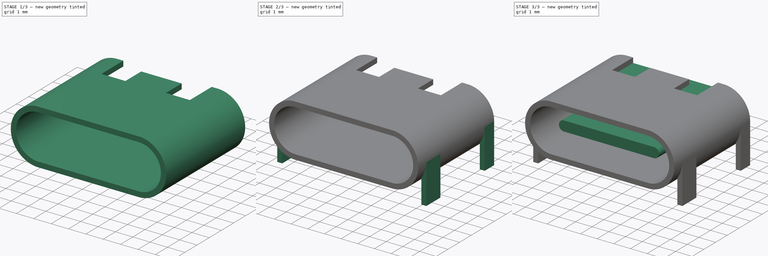
[diagram: build sequence overview — one tinted view per stage of 3, left to right]
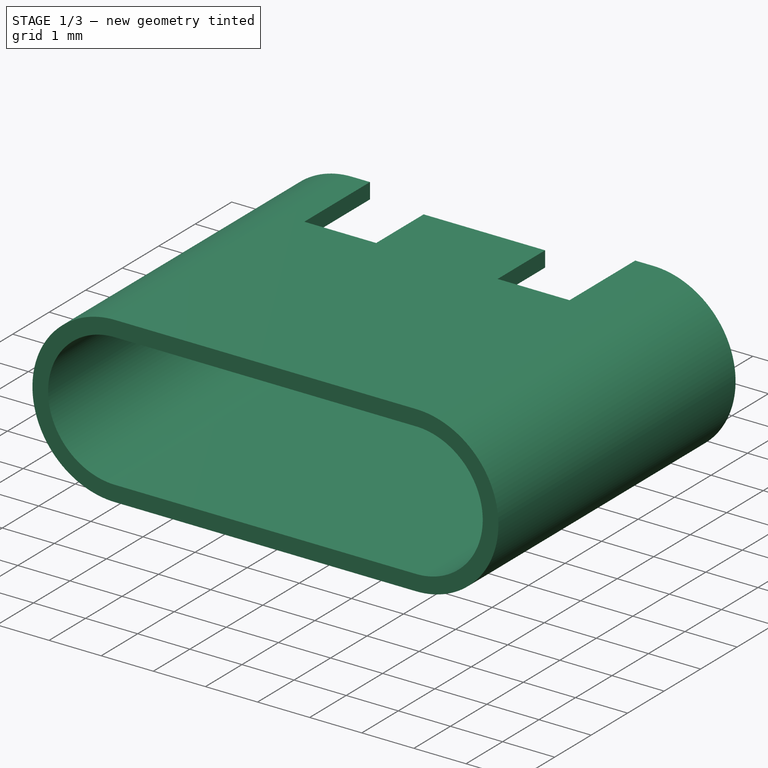
[diagram: stage 1 of 3 — iso view after this stage's code; geometry added in this stage tinted green]
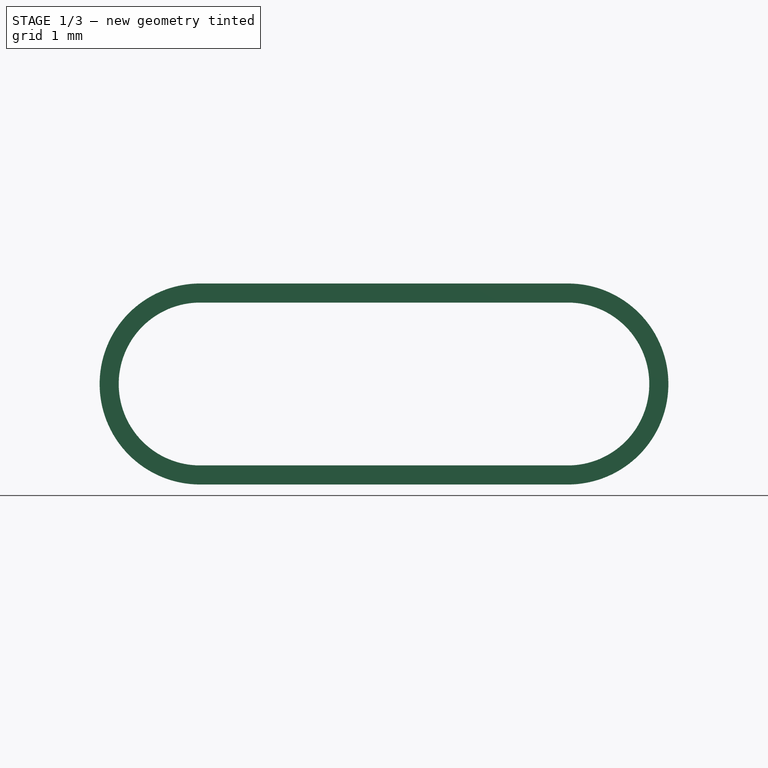
[diagram: stage 1 of 3 — front view after this stage's code; geometry added in this stage tinted green]
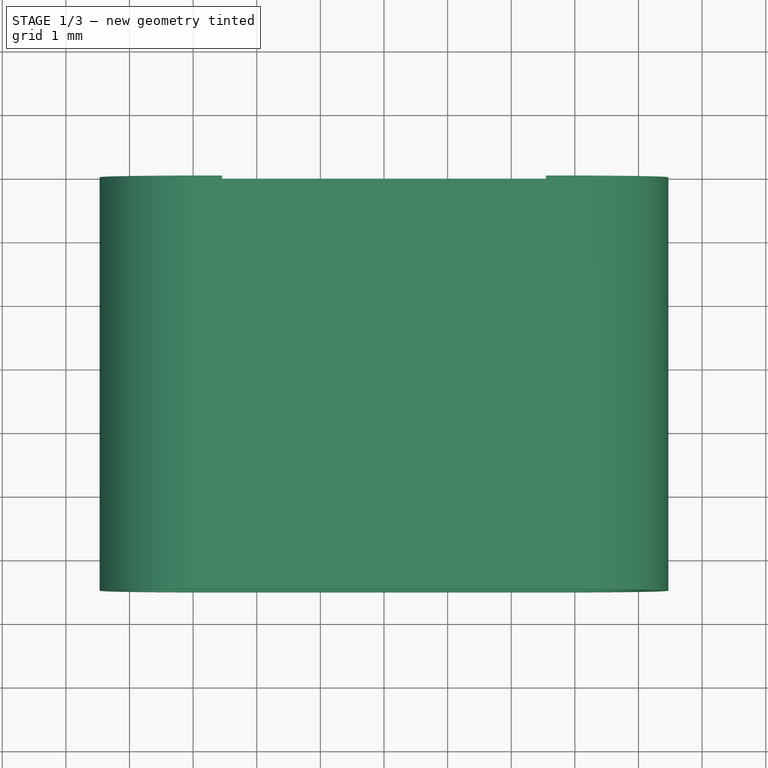
[diagram: stage 1 of 3 — top view after this stage's code; geometry added in this stage tinted green]
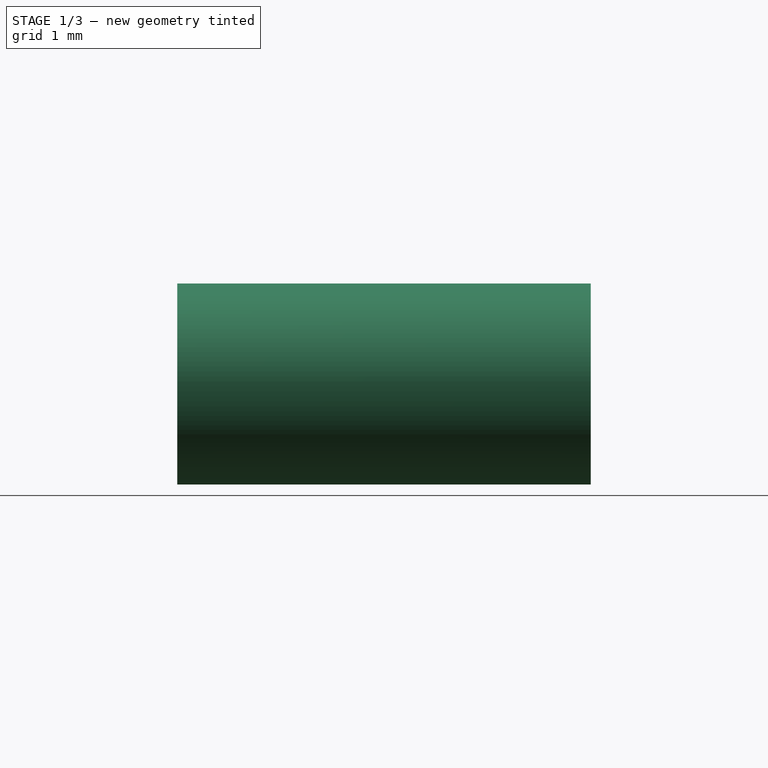
[diagram: stage 1 of 3 — right view after this stage's code; geometry added in this stage tinted green]
FCSTD DOCUMENT  (FreeCAD 0.20R27537 (Git))
Label: HC-TYPE-C-16P-01M
License: All rights reserved
LicenseURL: http://en.wikipedia.org/wiki/All_rights_reserved
objects: Sketcher::SketchObject×8, PartDesign::Pad×5, PartDesign::Plane×3, PartDesign::Pocket×1, PartDesign::Body×1
note: 24 computed .brp shape members not serialized (recipe doc carries the construction recipe); baked Part::Feature solids carry a one-line shape summary decoded from their .brp

FEATURE [Sketcher::SketchObject] Sketch
  FullyConstrained = true
  MapMode = 5
  Placement = pos=(0,0,0) rot=(1,0,0;1.5708rad)
  Support = -> [XZ_Plane]
  sketch-geometry (10):
    g0: ArcOfCircle CenterX=-2.89 CenterY=1.58 CenterZ=0 NormalX=0 NormalY=0 NormalZ=1 AngleXU=0 Radius=1.58 StartAngle=1.5708 EndAngle=4.71239
    g1: ArcOfCircle CenterX=2.89 CenterY=1.58 CenterZ=0 NormalX=0 NormalY=0 NormalZ=1 AngleXU=0 Radius=1.58 StartAngle=4.71239 EndAngle=7.85398
    g2: LineSegment StartX=-2.89 StartY=0 StartZ=0 EndX=2.89 EndY=0 EndZ=0
    g3: LineSegment StartX=2.89 StartY=3.16 StartZ=0 EndX=-2.89 EndY=3.16 EndZ=0
    g4: GeomPoint X=-4.47 Y=1.58 Z=0
    g5: GeomPoint X=4.47 Y=1.58 Z=0
    g6: ArcOfCircle CenterX=-2.89 CenterY=1.58 CenterZ=0 NormalX=0 NormalY=0 NormalZ=1 AngleXU=0 Radius=1.28 StartAngle=1.5708 EndAngle=4.71239
    g7: ArcOfCircle CenterX=2.89 CenterY=1.58 CenterZ=0 NormalX=0 NormalY=0 NormalZ=1 AngleXU=0 Radius=1.28 StartAngle=4.71239 EndAngle=7.85398
    g8: LineSegment StartX=-2.89 StartY=0.3 StartZ=0 EndX=2.89 EndY=0.3 EndZ=0
    g9: LineSegment StartX=2.89 StartY=2.86 StartZ=0 EndX=-2.89 EndY=2.86 EndZ=0
  constraints (21):
    c: Tangent(g0,g2) = -1.5708
    c: Tangent(g2,g1) = -1.5708
    c: Tangent(g1,g3) = -1.5708
    c: Tangent(g3,g0) = -1.5708
    c: Equal(g0,g1)
    c: PointOnObject(g0,g-1)
    c: DistanceY(g0,g0) = 3.16
    c: PointOnObject(g5,g1)
    c: PointOnObject(g4,g0)
    c: Horizontal(g4,g5)
    c: Horizontal(g4,g0)
    c: DistanceX(g4,g5) = 8.94
    c: Symmetric(g0,g1,g-2)
    c: Tangent(g6,g8) = -1.5708
    c: Tangent(g8,g7) = -1.5708
    c: Tangent(g7,g9) = -1.5708
    c: Tangent(g9,g6) = -1.5708
    c: Equal(g6,g7)
    c: Symmetric(g6,g7,g-2)
    c: Coincident(g6,g0)
    c: DistanceY(g6,g0) = 0.3
FEATURE [PartDesign::Pad] Pad
  Direction = (0,-1,2e-16)
  Length = 6.5
  Length2 = 10
  Placement = pos=(0,0,0) rot=(1,0,0;1.5708rad)
  Profile = -> Sketch
  ReferenceAxis = -> Sketch [N_Axis]
  Type = 0
FEATURE [PartDesign::Plane] DatumPlane  label="Top"
  Length = 60
  MapMode = 5
  Placement = pos=(0,2.1e-15,3.16) rot=(0,0,1;3.14159rad)
  ResizeMode = 0
  Support = -> [Pad]
  Width = 60
FEATURE [Sketcher::SketchObject] Sketch001
  FullyConstrained = true
  MapMode = 5
  Placement = pos=(0,2.1e-15,3.16) rot=(0,0,1;3.14159rad)
  Support = -> [DatumPlane]
  sketch-geometry (8):
    g0: LineSegment StartX=-2.545 StartY=0 StartZ=0 EndX=-2.545 EndY=1.8 EndZ=0
    g1: LineSegment StartX=-2.545 StartY=1.8 StartZ=0 EndX=-1.165 EndY=1.8 EndZ=0
    g2: LineSegment StartX=-1.165 StartY=1.8 StartZ=0 EndX=-1.165 EndY=0.5 EndZ=0
    g3: LineSegment StartX=-1.165 StartY=0.5 StartZ=0 EndX=1.165 EndY=0.5 EndZ=0
    g4: LineSegment StartX=1.165 StartY=0.5 StartZ=0 EndX=1.165 EndY=1.8 EndZ=0
    g5: LineSegment StartX=1.165 StartY=1.8 StartZ=0 EndX=2.545 EndY=1.8 EndZ=0
    g6: LineSegment StartX=2.545 StartY=1.8 StartZ=0 EndX=2.545 EndY=0 EndZ=0
    g7: LineSegment StartX=2.545 StartY=0 StartZ=0 EndX=-2.545 EndY=0 EndZ=0
  constraints (23):
    c: Vertical(g0)
    c: Coincident(g0,g1)
    c: Horizontal(g1)
    c: Coincident(g1,g2)
    c: Vertical(g2)
    c: Coincident(g2,g3)
    c: Horizontal(g3)
    c: Coincident(g3,g4)
    c: Vertical(g4)
    c: Coincident(g4,g5)
    c: Horizontal(g5)
    c: Coincident(g5,g6)
    c: Vertical(g6)
    c: Coincident(g6,g7)
    c: Coincident(g7,g0)
    c: Horizontal(g7)
    c: Symmetric(g1,g4,g-2)
    c: Equal(g1,g5)
    c: DistanceX(g7,g7) = 5.09
    c: DistanceX(g1,g1) = 1.38
    c: DistanceY(g0,g0) = -1.8
    c: PointOnObject(g0,g-1)
    c: DistanceY(g6,g3) = 0.5
FEATURE [PartDesign::Pocket] Pocket  label="topBackCutout"
  BaseFeature = -> Pad
  Direction = (0,-7e-16,-1)
  Length = 1
  Length2 = 5
  Placement = pos=(0,0,0) rot=(1,0,0;1.5708rad)
  Profile = -> Sketch001
  ReferenceAxis = -> Sketch001 [N_Axis]
  Type = 0
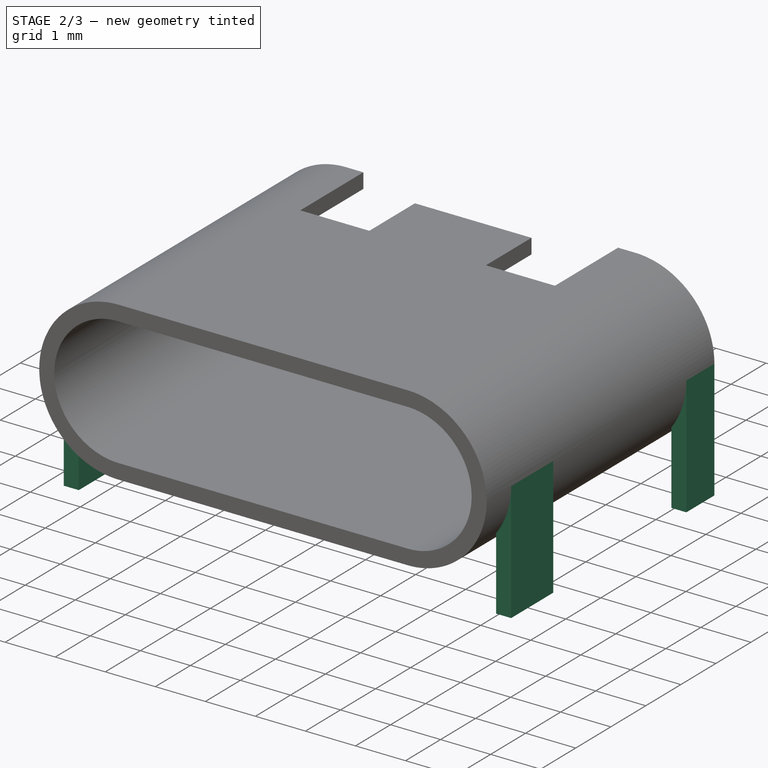
[diagram: stage 2 of 3 — iso view after this stage's code; geometry added in this stage tinted green]
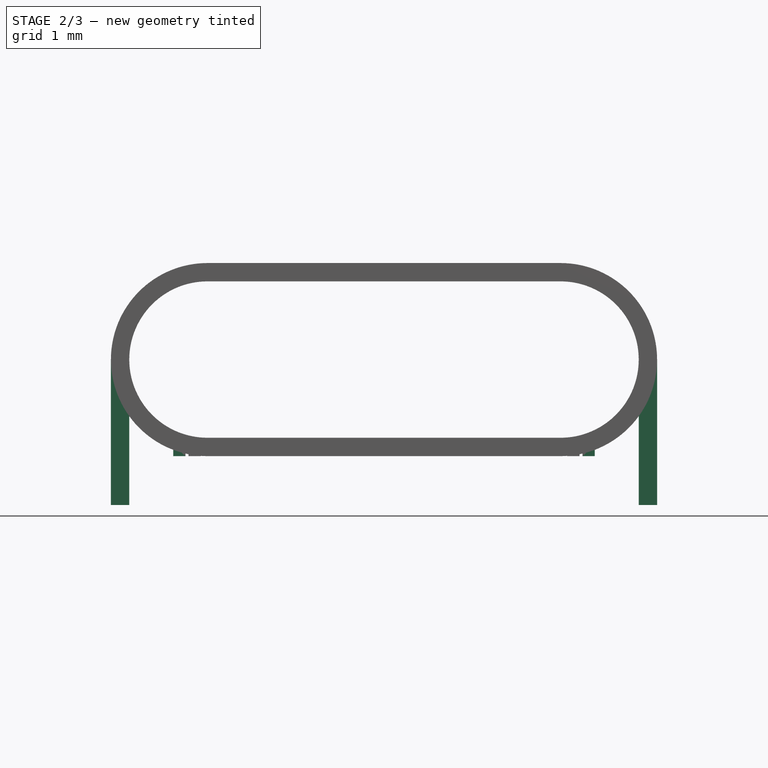
[diagram: stage 2 of 3 — front view after this stage's code; geometry added in this stage tinted green]
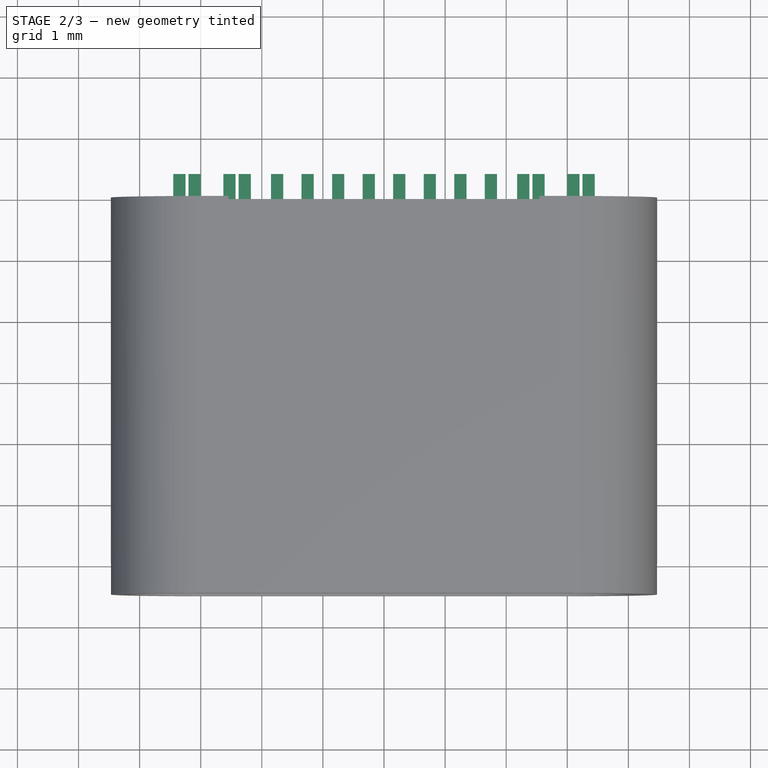
[diagram: stage 2 of 3 — top view after this stage's code; geometry added in this stage tinted green]
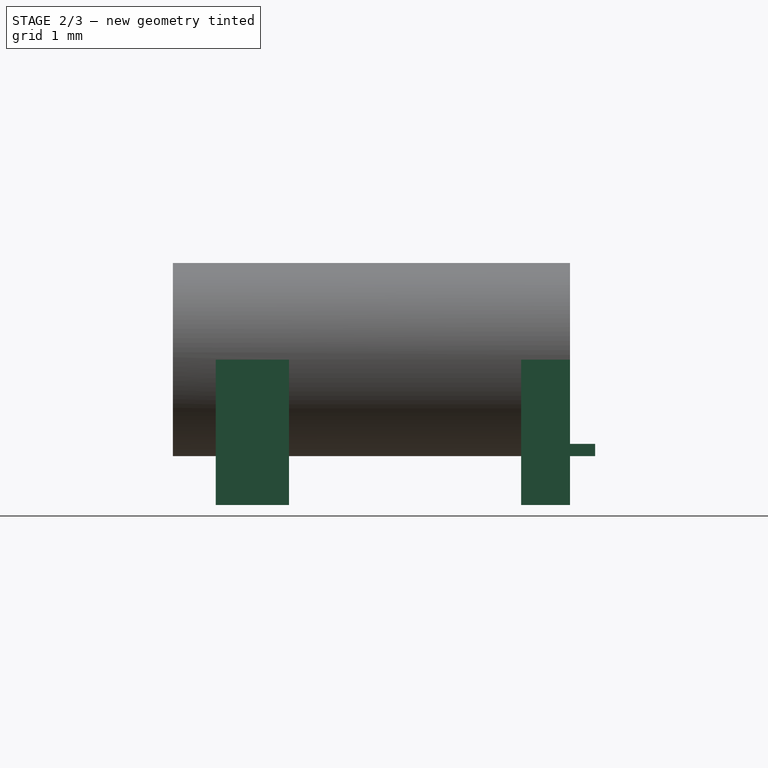
[diagram: stage 2 of 3 — right view after this stage's code; geometry added in this stage tinted green]
FEATURE [PartDesign::Plane] DatumPlane001  label="BottomPlane"
  Length = 60
  MapMode = 5
  Placement = pos=(0,0,0) rot=(1,0,0;3.14159rad)
  ResizeMode = 0
  Support = -> [Pocket]
  Width = 60
FEATURE [Sketcher::SketchObject] Sketch002
  FullyConstrained = true
  MapMode = 5
  Placement = pos=(0,0,0) rot=(1,0,0;3.14159rad)
  Support = -> [DatumPlane001]
  sketch-geometry (16):
    g0: LineSegment StartX=-4.47 StartY=5.8 StartZ=0 EndX=-4.17 EndY=5.8 EndZ=0
    g1: LineSegment StartX=-4.17 StartY=5.8 StartZ=0 EndX=-4.17 EndY=4.6 EndZ=0
    g2: LineSegment StartX=-4.17 StartY=4.6 StartZ=0 EndX=-4.47 EndY=4.6 EndZ=0
    g3: LineSegment StartX=-4.47 StartY=4.6 StartZ=0 EndX=-4.47 EndY=5.8 EndZ=0
    g4: LineSegment StartX=4.17 StartY=5.8 StartZ=0 EndX=4.47 EndY=5.8 EndZ=0
    g5: LineSegment StartX=4.47 StartY=5.8 StartZ=0 EndX=4.47 EndY=4.6 EndZ=0
    g6: LineSegment StartX=4.47 StartY=4.6 StartZ=0 EndX=4.17 EndY=4.6 EndZ=0
    g7: LineSegment StartX=4.17 StartY=4.6 StartZ=0 EndX=4.17 EndY=5.8 EndZ=0
    g8: LineSegment StartX=-4.47 StartY=0.8 StartZ=0 EndX=-4.17 EndY=0.8 EndZ=0
    g9: LineSegment StartX=-4.17 StartY=0.8 StartZ=0 EndX=-4.17 EndY=0 EndZ=0
    g10: LineSegment StartX=-4.17 StartY=0 StartZ=0 EndX=-4.47 EndY=0 EndZ=0
    g11: LineSegment StartX=-4.47 StartY=0 StartZ=0 EndX=-4.47 EndY=0.8 EndZ=0
    g12: LineSegment StartX=4.17 StartY=0.8 StartZ=0 EndX=4.47 EndY=0.8 EndZ=0
    g13: LineSegment StartX=4.47 StartY=0.8 StartZ=0 EndX=4.47 EndY=0 EndZ=0
    g14: LineSegment StartX=4.47 StartY=0 StartZ=0 EndX=4.17 EndY=0 EndZ=0
    g15: LineSegment StartX=4.17 StartY=0 StartZ=0 EndX=4.17 EndY=0.8 EndZ=0
  constraints (46):
    c: Coincident(g0,g1)
    c: Coincident(g1,g2)
    c: Coincident(g2,g3)
    c: Coincident(g3,g0)
    c: Horizontal(g0)
    c: Horizontal(g2)
    c: Vertical(g1)
    c: Vertical(g3)
    c: Coincident(g4,g5)
    c: Coincident(g5,g6)
    c: Coincident(g6,g7)
    c: Coincident(g7,g4)
    c: Horizontal(g4)
    c: Horizontal(g6)
    c: Vertical(g5)
    c: Vertical(g7)
    c: Coincident(g8,g9)
    c: Coincident(g9,g10)
    c: Coincident(g10,g11)
    c: Coincident(g11,g8)
    c: Horizontal(g8)
    c: Horizontal(g10)
    c: Vertical(g9)
    c: Vertical(g11)
    c: PointOnObject(g9,g-1)
    c: Coincident(g12,g13)
    c: Coincident(g13,g14)
    c: Coincident(g14,g15)
    c: Coincident(g15,g12)
    c: Horizontal(g12)
    c: Horizontal(g14)
    c: Vertical(g13)
    c: Vertical(g15)
    c: PointOnObject(g13,g-1)
    c: Equal(g8,g2)
    c: Equal(g8,g12)
    c: Equal(g1,g7)
    c: Symmetric(g0,g4,g-2)
    c: Vertical(g8,g2)
    c: Symmetric(g8,g12,g-2)
    c: Vertical(g5,g12)
    c: DistanceY(g5,g5) = 1.2
    c: DistanceY(g13,g13) = 0.8
    c: DistanceY(g12,g6) = 3.8
    c: DistanceX(g2,g2) = 0.3
    c: DistanceX(g0,g4) = 8.94
FEATURE [PartDesign::Pad] Pad001  label="Legs"
  BaseFeature = -> Pocket
  Direction = (0,-1.1e-15,-1)
  Length = 1.58
  Length2 = 0.8
  Placement = pos=(0,0,0) rot=(1,0,0;1.5708rad)
  Profile = -> Sketch002
  ReferenceAxis = -> Sketch002 [N_Axis]
  Reversed = true
  Type = 4
FEATURE [Sketcher::SketchObject] Sketch003  label="OneSidePins"
  FullyConstrained = true
  MapMode = 5
  Placement = pos=(0,0,0) rot=(1,0,0;3.14159rad)
  Support = -> [DatumPlane001]
  sketch-geometry (32):
    g0: LineSegment StartX=-3.45 StartY=0.34 StartZ=0 EndX=-3.25 EndY=0.34 EndZ=0
    g1: LineSegment StartX=-3.25 StartY=0.34 StartZ=0 EndX=-3.25 EndY=-0.41 EndZ=0
    g2: LineSegment StartX=-3.25 StartY=-0.41 StartZ=0 EndX=-3.45 EndY=-0.41 EndZ=0
    g3: LineSegment StartX=-3.45 StartY=-0.41 StartZ=0 EndX=-3.45 EndY=0.34 EndZ=0
    g4: LineSegment StartX=-3.2 StartY=0.34 StartZ=0 EndX=-3 EndY=0.34 EndZ=0
    g5: LineSegment StartX=-3 StartY=0.34 StartZ=0 EndX=-3 EndY=-0.41 EndZ=0
    g6: LineSegment StartX=-3 StartY=-0.41 StartZ=0 EndX=-3.2 EndY=-0.41 EndZ=0
    g7: LineSegment StartX=-3.2 StartY=-0.41 StartZ=0 EndX=-3.2 EndY=0.34 EndZ=0
    g8: LineSegment StartX=-2.63 StartY=0.34 StartZ=0 EndX=-2.43 EndY=0.34 EndZ=0
    g9: LineSegment StartX=-2.43 StartY=0.34 StartZ=0 EndX=-2.43 EndY=-0.41 EndZ=0
    g10: LineSegment StartX=-2.43 StartY=-0.41 StartZ=0 EndX=-2.63 EndY=-0.41 EndZ=0
    g11: LineSegment StartX=-2.63 StartY=-0.41 StartZ=0 EndX=-2.63 EndY=0.34 EndZ=0
    g12: LineSegment StartX=-2.38 StartY=0.34 StartZ=0 EndX=-2.18 EndY=0.34 EndZ=0
    g13: LineSegment StartX=-2.18 StartY=0.34 StartZ=0 EndX=-2.18 EndY=-0.41 EndZ=0
    g14: LineSegment StartX=-2.18 StartY=-0.41 StartZ=0 EndX=-2.38 EndY=-0.41 EndZ=0
    g15: LineSegment StartX=-2.38 StartY=-0.41 StartZ=0 EndX=-2.38 EndY=0.34 EndZ=0
    g16: LineSegment StartX=-1.85 StartY=0.34 StartZ=0 EndX=-1.65 EndY=0.34 EndZ=0
    g17: LineSegment StartX=-1.65 StartY=0.34 StartZ=0 EndX=-1.65 EndY=-0.41 EndZ=0
    g18: LineSegment StartX=-1.65 StartY=-0.41 StartZ=0 EndX=-1.85 EndY=-0.41 EndZ=0
    g19: LineSegment StartX=-1.85 StartY=-0.41 StartZ=0 EndX=-1.85 EndY=0.34 EndZ=0
    g20: LineSegment StartX=-1.35 StartY=0.34 StartZ=0 EndX=-1.15 EndY=0.34 EndZ=0
    g21: LineSegment StartX=-1.15 StartY=0.34 StartZ=0 EndX=-1.15 EndY=-0.41 EndZ=0
    g22: LineSegment StartX=-1.15 StartY=-0.41 StartZ=0 EndX=-1.35 EndY=-0.41 EndZ=0
    g23: LineSegment StartX=-1.35 StartY=-0.41 StartZ=0 EndX=-1.35 EndY=0.34 EndZ=0
    g24: LineSegment StartX=-0.85 StartY=0.34 StartZ=0 EndX=-0.65 EndY=0.34 EndZ=0
    g25: LineSegment StartX=-0.65 StartY=0.34 StartZ=0 EndX=-0.65 EndY=-0.41 EndZ=0
    g26: LineSegment StartX=-0.65 StartY=-0.41 StartZ=0 EndX=-0.85 EndY=-0.41 EndZ=0
    g27: LineSegment StartX=-0.85 StartY=-0.41 StartZ=0 EndX=-0.85 EndY=0.34 EndZ=0
    g28: LineSegment StartX=-0.35 StartY=0.34 StartZ=0 EndX=-0.15 EndY=0.34 EndZ=0
    g29: LineSegment StartX=-0.15 StartY=0.34 StartZ=0 EndX=-0.15 EndY=-0.41 EndZ=0
    g30: LineSegment StartX=-0.15 StartY=-0.41 StartZ=0 EndX=-0.35 EndY=-0.41 EndZ=0
    g31: LineSegment StartX=-0.35 StartY=-0.41 StartZ=0 EndX=-0.35 EndY=0.34 EndZ=0
  constraints (96):
    c: Coincident(g0,g1)
    c: Coincident(g1,g2)
    c: Coincident(g2,g3)
    c: Coincident(g3,g0)
    c: Horizontal(g0)
    c: Horizontal(g2)
    c: Vertical(g1)
    c: Vertical(g3)
    c: Coincident(g4,g5)
    c: Coincident(g5,g6)
    c: Coincident(g6,g7)
    c: Coincident(g7,g4)
    c: Horizontal(g4)
    c: Horizontal(g6)
    c: Vertical(g5)
    c: Vertical(g7)
    c: Coincident(g8,g9)
    c: Coincident(g9,g10)
    c: Coincident(g10,g11)
    c: Coincident(g11,g8)
    c: Horizontal(g8)
    c: Horizontal(g10)
    c: Vertical(g9)
    c: Vertical(g11)
    c: Coincident(g12,g13)
    c: Coincident(g13,g14)
    c: Coincident(g14,g15)
    c: Coincident(g15,g12)
    c: Horizontal(g12)
    c: Horizontal(g14)
    c: Vertical(g13)
    c: Vertical(g15)
    c: Coincident(g16,g17)
    c: Coincident(g17,g18)
    c: Coincident(g18,g19)
    c: Coincident(g19,g16)
    c: Horizontal(g16)
    c: Horizontal(g18)
    c: Vertical(g17)
    c: Vertical(g19)
    c: Coincident(g20,g21)
    c: Coincident(g21,g22)
    c: Coincident(g22,g23)
    c: Coincident(g23,g20)
    c: Horizontal(g20)
    c: Horizontal(g22)
    c: Vertical(g21)
    c: Vertical(g23)
    c: Coincident(g24,g25)
    c: Coincident(g25,g26)
    c: Coincident(g26,g27)
    c: Coincident(g27,g24)
    c: Horizontal(g24)
    c: Horizontal(g26)
    c: Vertical(g25)
    c: Vertical(g27)
    c: Coincident(g28,g29)
    c: Coincident(g29,g30)
    c: Coincident(g30,g31)
    c: Coincident(g31,g28)
    c: Horizontal(g28)
    c: Horizontal(g30)
    c: Vertical(g29)
    c: Vertical(g31)
    c: Equal(g2,g6)
    c: Equal(g6,g10)
    c: Equal(g10,g14)
    c: Equal(g18,g14)
    c: Equal(g22,g18)
    c: Equal(g26,g22)
    c: Equal(g30,g26)
    c: DistanceX(g2,g2) = 0.2
    c: DistanceX(g1,g6) = 0.05
    c: Horizontal(g0,g4)
    c: Horizontal(g4,g8)
    c: Horizontal(g4,g12)
    c: Horizontal(g12,g16)
    c: Horizontal(g16,g24)
    c: Horizontal(g20,g16)
    c: Horizontal(g28,g24)
    c: Equal(g1,g7)
    c: Equal(g1,g11)
    c: Equal(g15,g9)
    c: Equal(g19,g13)
    c: Equal(g23,g17)
    c: Equal(g21,g27)
    c: Equal(g31,g25)
    c: DistanceY(g5,g5) = 0.75
    c: DistanceY(g29,g-1) = 0.41
    c: DistanceX(g29,g-1) = 0.15
    c: DistanceX(g25,g-1) = 0.65
    c: DistanceX(g10,g14) = 0.25
    c: DistanceX(g22,g26) = 0.5
    c: DistanceX(g18,g22) = 0.5
    c: DistanceX(g13,g-1) = 2.18
    c: DistanceX(g2,g-1) = 3.45
FEATURE [Sketcher::SketchObject] MirroredSketch  label="OtherSidePins"
  FullyConstrained = false
  Placement = pos=(0,0,0) rot=(1,0,0;3.14159rad)
  sketch-geometry (32):
    g0: LineSegment StartX=3.45 StartY=0.34 StartZ=0 EndX=3.25 EndY=0.34 EndZ=0
    g1: LineSegment StartX=3.25 StartY=0.34 StartZ=0 EndX=3.25 EndY=-0.41 EndZ=0
    g2: LineSegment StartX=3.25 StartY=-0.41 StartZ=0 EndX=3.45 EndY=-0.41 EndZ=0
    g3: LineSegment StartX=3.45 StartY=-0.41 StartZ=0 EndX=3.45 EndY=0.34 EndZ=0
    g4: LineSegment StartX=3.2 StartY=0.34 StartZ=0 EndX=3 EndY=0.34 EndZ=0
    g5: LineSegment StartX=3 StartY=0.34 StartZ=0 EndX=3 EndY=-0.41 EndZ=0
    g6: LineSegment StartX=3 StartY=-0.41 StartZ=0 EndX=3.2 EndY=-0.41 EndZ=0
    g7: LineSegment StartX=3.2 StartY=-0.41 StartZ=0 EndX=3.2 EndY=0.34 EndZ=0
    g8: LineSegment StartX=2.63 StartY=0.34 StartZ=0 EndX=2.43 EndY=0.34 EndZ=0
    g9: LineSegment StartX=2.43 StartY=0.34 StartZ=0 EndX=2.43 EndY=-0.41 EndZ=0
    g10: LineSegment StartX=2.43 StartY=-0.41 StartZ=0 EndX=2.63 EndY=-0.41 EndZ=0
    g11: LineSegment StartX=2.63 StartY=-0.41 StartZ=0 EndX=2.63 EndY=0.34 EndZ=0
    g12: LineSegment StartX=2.38 StartY=0.34 StartZ=0 EndX=2.18 EndY=0.34 EndZ=0
    g13: LineSegment StartX=2.18 StartY=0.34 StartZ=0 EndX=2.18 EndY=-0.41 EndZ=0
    g14: LineSegment StartX=2.18 StartY=-0.41 StartZ=0 EndX=2.38 EndY=-0.41 EndZ=0
    g15: LineSegment StartX=2.38 StartY=-0.41 StartZ=0 EndX=2.38 EndY=0.34 EndZ=0
    g16: LineSegment StartX=1.85 StartY=0.34 StartZ=0 EndX=1.65 EndY=0.34 EndZ=0
    g17: LineSegment StartX=1.65 StartY=0.34 StartZ=0 EndX=1.65 EndY=-0.41 EndZ=0
    g18: LineSegment StartX=1.65 StartY=-0.41 StartZ=0 EndX=1.85 EndY=-0.41 EndZ=0
    g19: LineSegment StartX=1.85 StartY=-0.41 StartZ=0 EndX=1.85 EndY=0.34 EndZ=0
    g20: LineSegment StartX=1.35 StartY=0.34 StartZ=0 EndX=1.15 EndY=0.34 EndZ=0
    g21: LineSegment StartX=1.15 StartY=0.34 StartZ=0 EndX=1.15 EndY=-0.41 EndZ=0
    g22: LineSegment StartX=1.15 StartY=-0.41 StartZ=0 EndX=1.35 EndY=-0.41 EndZ=0
    g23: LineSegment StartX=1.35 StartY=-0.41 StartZ=0 EndX=1.35 EndY=0.34 EndZ=0
    g24: LineSegment StartX=0.85 StartY=0.34 StartZ=0 EndX=0.65 EndY=0.34 EndZ=0
    g25: LineSegment StartX=0.65 StartY=0.34 StartZ=0 EndX=0.65 EndY=-0.41 EndZ=0
    g26: LineSegment StartX=0.65 StartY=-0.41 StartZ=0 EndX=0.85 EndY=-0.41 EndZ=0
    g27: LineSegment StartX=0.85 StartY=-0.41 StartZ=0 EndX=0.85 EndY=0.34 EndZ=0
    g28: LineSegment StartX=0.35 StartY=0.34 StartZ=0 EndX=0.15 EndY=0.34 EndZ=0
    g29: LineSegment StartX=0.15 StartY=0.34 StartZ=0 EndX=0.15 EndY=-0.41 EndZ=0
    g30: LineSegment StartX=0.15 StartY=-0.41 StartZ=0 EndX=0.35 EndY=-0.41 EndZ=0
    g31: LineSegment StartX=0.35 StartY=-0.41 StartZ=0 EndX=0.35 EndY=0.34 EndZ=0
  constraints (78):
    c: Coincident(g0,g1)
    c: Coincident(g1,g2)
    c: Coincident(g2,g3)
    c: Coincident(g3,g0)
    c: Horizontal(g0)
    c: Horizontal(g2)
    c: Vertical(g1)
    c: Vertical(g3)
    c: Coincident(g4,g5)
    c: Coincident(g5,g6)
    c: Coincident(g6,g7)
    c: Coincident(g7,g4)
    c: Horizontal(g4)
    c: Horizontal(g6)
    c: Vertical(g5)
    c: Vertical(g7)
    c: Coincident(g8,g9)
    c: Coincident(g9,g10)
    c: Coincident(g10,g11)
    c: Coincident(g11,g8)
    c: Horizontal(g8)
    c: Horizontal(g10)
    c: Vertical(g9)
    c: Vertical(g11)
    c: Coincident(g12,g13)
    c: Coincident(g13,g14)
    c: Coincident(g14,g15)
    c: Coincident(g15,g12)
    c: Horizontal(g12)
    c: Horizontal(g14)
    c: Vertical(g13)
    c: Vertical(g15)
    c: Coincident(g16,g17)
    c: Coincident(g17,g18)
    c: Coincident(g18,g19)
    c: Coincident(g19,g16)
    c: Horizontal(g16)
    c: Horizontal(g18)
    c: Vertical(g17)
    c: Vertical(g19)
    c: Coincident(g20,g21)
    c: Coincident(g21,g22)
    c: Coincident(g22,g23)
    c: Coincident(g23,g20)
    c: Horizontal(g20)
    c: Horizontal(g22)
    c: Vertical(g21)
    c: Vertical(g23)
    c: Coincident(g24,g25)
    c: Coincident(g25,g26)
    c: Coincident(g26,g27)
    c: Coincident(g27,g24)
    c: Horizontal(g24)
    c: Horizontal(g26)
    c: Vertical(g25)
    c: Vertical(g27)
    c: Coincident(g28,g29)
    c: Coincident(g29,g30)
    c: Coincident(g30,g31)
    c: Coincident(g31,g28)
    c: Horizontal(g28)
    c: Horizontal(g30)
    c: Vertical(g29)
    c: Vertical(g31)
    c: Equal(g2,g6)
    c: Equal(g6,g10)
    c: Equal(g10,g14)
    c: Equal(g18,g14)
    c: Equal(g22,g18)
    c: Equal(g26,g22)
    c: Equal(g30,g26)
    c: Equal(g1,g7)
    c: Equal(g1,g11)
    c: Equal(g15,g9)
    c: Equal(g19,g13)
    c: Equal(g23,g17)
    c: Equal(g21,g27)
    c: Equal(g31,g25)
FEATURE [Sketcher::SketchObject] Sketch004  label="BothSidesPins"
  FullyConstrained = false
  Placement = pos=(0,0,0) rot=(1,0,0;3.14159rad)
  sketch-geometry (64):
    g0: LineSegment StartX=-3.45 StartY=0.34 StartZ=0 EndX=-3.25 EndY=0.34 EndZ=0
    g1: LineSegment StartX=-3.25 StartY=0.34 StartZ=0 EndX=-3.25 EndY=-0.41 EndZ=0
    g2: LineSegment StartX=-3.25 StartY=-0.41 StartZ=0 EndX=-3.45 EndY=-0.41 EndZ=0
    g3: LineSegment StartX=-3.45 StartY=-0.41 StartZ=0 EndX=-3.45 EndY=0.34 EndZ=0
    g4: LineSegment StartX=-3.2 StartY=0.34 StartZ=0 EndX=-3 EndY=0.34 EndZ=0
    g5: LineSegment StartX=-3 StartY=0.34 StartZ=0 EndX=-3 EndY=-0.41 EndZ=0
    g6: LineSegment StartX=-3 StartY=-0.41 StartZ=0 EndX=-3.2 EndY=-0.41 EndZ=0
    g7: LineSegment StartX=-3.2 StartY=-0.41 StartZ=0 EndX=-3.2 EndY=0.34 EndZ=0
    g8: LineSegment StartX=-2.63 StartY=0.34 StartZ=0 EndX=-2.43 EndY=0.34 EndZ=0
    g9: LineSegment StartX=-2.43 StartY=0.34 StartZ=0 EndX=-2.43 EndY=-0.41 EndZ=0
    g10: LineSegment StartX=-2.43 StartY=-0.41 StartZ=0 EndX=-2.63 EndY=-0.41 EndZ=0
    g11: LineSegment StartX=-2.63 StartY=-0.41 StartZ=0 EndX=-2.63 EndY=0.34 EndZ=0
    g12: LineSegment StartX=-2.38 StartY=0.34 StartZ=0 EndX=-2.18 EndY=0.34 EndZ=0
    g13: LineSegment StartX=-2.18 StartY=0.34 StartZ=0 EndX=-2.18 EndY=-0.41 EndZ=0
    g14: LineSegment StartX=-2.18 StartY=-0.41 StartZ=0 EndX=-2.38 EndY=-0.41 EndZ=0
    g15: LineSegment StartX=-2.38 StartY=-0.41 StartZ=0 EndX=-2.38 EndY=0.34 EndZ=0
    g16: LineSegment StartX=-1.85 StartY=0.34 StartZ=0 EndX=-1.65 EndY=0.34 EndZ=0
    g17: LineSegment StartX=-1.65 StartY=0.34 StartZ=0 EndX=-1.65 EndY=-0.41 EndZ=0
    g18: LineSegment StartX=-1.65 StartY=-0.41 StartZ=0 EndX=-1.85 EndY=-0.41 EndZ=0
    g19: LineSegment StartX=-1.85 StartY=-0.41 StartZ=0 EndX=-1.85 EndY=0.34 EndZ=0
    g20: LineSegment StartX=-1.35 StartY=0.34 StartZ=0 EndX=-1.15 EndY=0.34 EndZ=0
    g21: LineSegment StartX=-1.15 StartY=0.34 StartZ=0 EndX=-1.15 EndY=-0.41 EndZ=0
    g22: LineSegment StartX=-1.15 StartY=-0.41 StartZ=0 EndX=-1.35 EndY=-0.41 EndZ=0
    g23: LineSegment StartX=-1.35 StartY=-0.41 StartZ=0 EndX=-1.35 EndY=0.34 EndZ=0
    g24: LineSegment StartX=-0.85 StartY=0.34 StartZ=0 EndX=-0.65 EndY=0.34 EndZ=0
    g25: LineSegment StartX=-0.65 StartY=0.34 StartZ=0 EndX=-0.65 EndY=-0.41 EndZ=0
    g26: LineSegment StartX=-0.65 StartY=-0.41 StartZ=0 EndX=-0.85 EndY=-0.41 EndZ=0
    g27: LineSegment StartX=-0.85 StartY=-0.41 StartZ=0 EndX=-0.85 EndY=0.34 EndZ=0
    g28: LineSegment StartX=-0.35 StartY=0.34 StartZ=0 EndX=-0.15 EndY=0.34 EndZ=0
    g29: LineSegment StartX=-0.15 StartY=0.34 StartZ=0 EndX=-0.15 EndY=-0.41 EndZ=0
    g30: LineSegment StartX=-0.15 StartY=-0.41 StartZ=0 EndX=-0.35 EndY=-0.41 EndZ=0
    g31: LineSegment StartX=-0.35 StartY=-0.41 StartZ=0 EndX=-0.35 EndY=0.34 EndZ=0
    g32: LineSegment StartX=3.45 StartY=0.34 StartZ=0 EndX=3.25 EndY=0.34 EndZ=0
    g33: LineSegment StartX=3.25 StartY=0.34 StartZ=0 EndX=3.25 EndY=-0.41 EndZ=0
    g34: LineSegment StartX=3.25 StartY=-0.41 StartZ=0 EndX=3.45 EndY=-0.41 EndZ=0
    g35: LineSegment StartX=3.45 StartY=-0.41 StartZ=0 EndX=3.45 EndY=0.34 EndZ=0
    g36: LineSegment StartX=3.2 StartY=0.34 StartZ=0 EndX=3 EndY=0.34 EndZ=0
    g37: LineSegment StartX=3 StartY=0.34 StartZ=0 EndX=3 EndY=-0.41 EndZ=0
    g38: LineSegment StartX=3 StartY=-0.41 StartZ=0 EndX=3.2 EndY=-0.41 EndZ=0
    g39: LineSegment StartX=3.2 StartY=-0.41 StartZ=0 EndX=3.2 EndY=0.34 EndZ=0
    g40: LineSegment StartX=2.63 StartY=0.34 StartZ=0 EndX=2.43 EndY=0.34 EndZ=0
    g41: LineSegment StartX=2.43 StartY=0.34 StartZ=0 EndX=2.43 EndY=-0.41 EndZ=0
    g42: LineSegment StartX=2.43 StartY=-0.41 StartZ=0 EndX=2.63 EndY=-0.41 EndZ=0
    g43: LineSegment StartX=2.63 StartY=-0.41 StartZ=0 EndX=2.63 EndY=0.34 EndZ=0
    g44: LineSegment StartX=2.38 StartY=0.34 StartZ=0 EndX=2.18 EndY=0.34 EndZ=0
    g45: LineSegment StartX=2.18 StartY=0.34 StartZ=0 EndX=2.18 EndY=-0.41 EndZ=0
    g46: LineSegment StartX=2.18 StartY=-0.41 StartZ=0 EndX=2.38 EndY=-0.41 EndZ=0
    g47: LineSegment StartX=2.38 StartY=-0.41 StartZ=0 EndX=2.38 EndY=0.34 EndZ=0
    g48: LineSegment StartX=1.85 StartY=0.34 StartZ=0 EndX=1.65 EndY=0.34 EndZ=0
    g49: LineSegment StartX=1.65 StartY=0.34 StartZ=0 EndX=1.65 EndY=-0.41 EndZ=0
    g50: LineSegment StartX=1.65 StartY=-0.41 StartZ=0 EndX=1.85 EndY=-0.41 EndZ=0
    g51: LineSegment StartX=1.85 StartY=-0.41 StartZ=0 EndX=1.85 EndY=0.34 EndZ=0
    g52: LineSegment StartX=1.35 StartY=0.34 StartZ=0 EndX=1.15 EndY=0.34 EndZ=0
    g53: LineSegment StartX=1.15 StartY=0.34 StartZ=0 EndX=1.15 EndY=-0.41 EndZ=0
    g54: LineSegment StartX=1.15 StartY=-0.41 StartZ=0 EndX=1.35 EndY=-0.41 EndZ=0
    g55: LineSegment StartX=1.35 StartY=-0.41 StartZ=0 EndX=1.35 EndY=0.34 EndZ=0
    g56: LineSegment StartX=0.85 StartY=0.34 StartZ=0 EndX=0.65 EndY=0.34 EndZ=0
    g57: LineSegment StartX=0.65 StartY=0.34 StartZ=0 EndX=0.65 EndY=-0.41 EndZ=0
    g58: LineSegment StartX=0.65 StartY=-0.41 StartZ=0 EndX=0.85 EndY=-0.41 EndZ=0
    g59: LineSegment StartX=0.85 StartY=-0.41 StartZ=0 EndX=0.85 EndY=0.34 EndZ=0
    g60: LineSegment StartX=0.35 StartY=0.34 StartZ=0 EndX=0.15 EndY=0.34 EndZ=0
    g61: LineSegment StartX=0.15 StartY=0.34 StartZ=0 EndX=0.15 EndY=-0.41 EndZ=0
    g62: LineSegment StartX=0.15 StartY=-0.41 StartZ=0 EndX=0.35 EndY=-0.41 EndZ=0
    g63: LineSegment StartX=0.35 StartY=-0.41 StartZ=0 EndX=0.35 EndY=0.34 EndZ=0
  constraints (174):
    c: Coincident(g0,g1)
    c: Coincident(g1,g2)
    c: Coincident(g2,g3)
    c: Coincident(g3,g0)
    c: Horizontal(g0)
    c: Horizontal(g2)
    c: Vertical(g1)
    c: Vertical(g3)
    c: Coincident(g4,g5)
    c: Coincident(g5,g6)
    c: Coincident(g6,g7)
    c: Coincident(g7,g4)
    c: Horizontal(g4)
    c: Horizontal(g6)
    c: Vertical(g5)
    c: Vertical(g7)
    c: Coincident(g8,g9)
    c: Coincident(g9,g10)
    c: Coincident(g10,g11)
    c: Coincident(g11,g8)
    c: Horizontal(g8)
    c: Horizontal(g10)
    c: Vertical(g9)
    c: Vertical(g11)
    c: Coincident(g12,g13)
    c: Coincident(g13,g14)
    c: Coincident(g14,g15)
    c: Coincident(g15,g12)
    c: Horizontal(g12)
    c: Horizontal(g14)
    c: Vertical(g13)
    c: Vertical(g15)
    c: Coincident(g16,g17)
    c: Coincident(g17,g18)
    c: Coincident(g18,g19)
    c: Coincident(g19,g16)
    c: Horizontal(g16)
    c: Horizontal(g18)
    c: Vertical(g17)
    c: Vertical(g19)
    c: Coincident(g20,g21)
    c: Coincident(g21,g22)
    c: Coincident(g22,g23)
    c: Coincident(g23,g20)
    c: Horizontal(g20)
    c: Horizontal(g22)
    c: Vertical(g21)
    c: Vertical(g23)
    c: Coincident(g24,g25)
    c: Coincident(g25,g26)
    c: Coincident(g26,g27)
    c: Coincident(g27,g24)
    c: Horizontal(g24)
    c: Horizontal(g26)
    c: Vertical(g25)
    c: Vertical(g27)
    c: Coincident(g28,g29)
    c: Coincident(g29,g30)
    c: Coincident(g30,g31)
    c: Coincident(g31,g28)
    c: Horizontal(g28)
    c: Horizontal(g30)
    c: Vertical(g29)
    c: Vertical(g31)
    c: Equal(g2,g6)
    c: Equal(g6,g10)
    c: Equal(g10,g14)
    c: Equal(g18,g14)
    c: Equal(g22,g18)
    c: Equal(g26,g22)
    c: Equal(g30,g26)
    c: DistanceX(g2,g2) = 0.2
    c: DistanceX(g1,g6) = 0.05
    c: Horizontal(g0,g4)
    c: Horizontal(g4,g8)
    c: Horizontal(g4,g12)
    c: Horizontal(g12,g16)
    c: Horizontal(g16,g24)
    c: Horizontal(g20,g16)
    c: Horizontal(g28,g24)
    c: Equal(g1,g7)
    c: Equal(g1,g11)
    c: Equal(g15,g9)
    c: Equal(g19,g13)
    c: Equal(g23,g17)
    c: Equal(g21,g27)
    c: Equal(g31,g25)
    c: DistanceY(g5,g5) = 0.75
    c: DistanceY(g29,g-1) = 0.41
    c: DistanceX(g29,g-1) = 0.15
    c: DistanceX(g25,g-1) = 0.65
    c: DistanceX(g10,g14) = 0.25
    c: DistanceX(g22,g26) = 0.5
    c: DistanceX(g18,g22) = 0.5
    c: DistanceX(g13,g-1) = 2.18
    c: DistanceX(g2,g-1) = 3.45
    c: Coincident(g32,g33)
    c: Coincident(g33,g34)
    c: Coincident(g34,g35)
    c: Coincident(g35,g32)
    c: Horizontal(g32)
    c: Horizontal(g34)
    c: Vertical(g33)
    c: Vertical(g35)
    c: Coincident(g36,g37)
    c: Coincident(g37,g38)
    c: Coincident(g38,g39)
    c: Coincident(g39,g36)
    c: Horizontal(g36)
    c: Horizontal(g38)
    c: Vertical(g37)
    c: Vertical(g39)
    c: Coincident(g40,g41)
    c: Coincident(g41,g42)
    c: Coincident(g42,g43)
    c: Coincident(g43,g40)
    c: Horizontal(g40)
    c: Horizontal(g42)
    c: Vertical(g41)
    c: Vertical(g43)
    c: Coincident(g44,g45)
    c: Coincident(g45,g46)
    c: Coincident(g46,g47)
    c: Coincident(g47,g44)
    c: Horizontal(g44)
    c: Horizontal(g46)
    c: Vertical(g45)
    c: Vertical(g47)
    c: Coincident(g48,g49)
    c: Coincident(g49,g50)
    c: Coincident(g50,g51)
    c: Coincident(g51,g48)
    c: Horizontal(g48)
    c: Horizontal(g50)
    c: Vertical(g49)
    c: Vertical(g51)
    c: Coincident(g52,g53)
    c: Coincident(g53,g54)
    c: Coincident(g54,g55)
    c: Coincident(g55,g52)
    c: Horizontal(g52)
    c: Horizontal(g54)
    c: Vertical(g53)
    c: Vertical(g55)
    c: Coincident(g56,g57)
    c: Coincident(g57,g58)
    c: Coincident(g58,g59)
    c: Coincident(g59,g56)
    c: Horizontal(g56)
    c: Horizontal(g58)
    c: Vertical(g57)
    c: Vertical(g59)
    c: Coincident(g60,g61)
    c: Coincident(g61,g62)
    c: Coincident(g62,g63)
    c: Coincident(g63,g60)
    c: Horizontal(g60)
    c: Horizontal(g62)
    c: Vertical(g61)
    c: Vertical(g63)
    c: Equal(g34,g38)
    c: Equal(g38,g42)
    c: Equal(g42,g46)
    c: Equal(g50,g46)
    c: Equal(g54,g50)
    c: Equal(g58,g54)
    c: Equal(g62,g58)
    c: Equal(g33,g39)
    c: Equal(g33,g43)
    c: Equal(g47,g41)
    c: Equal(g51,g45)
    c: Equal(g55,g49)
    c: Equal(g53,g59)
    c: Equal(g63,g57)
FEATURE [PartDesign::Pad] Pad002
  BaseFeature = -> Pad001
  Direction = (0,-1.1e-15,-1)
  Length = 0.2
  Length2 = 10
  Placement = pos=(0,0,0) rot=(1,0,0;1.5708rad)
  Profile = -> Sketch004
  ReferenceAxis = -> Sketch004 [N_Axis]
  Reversed = true
  Type = 0
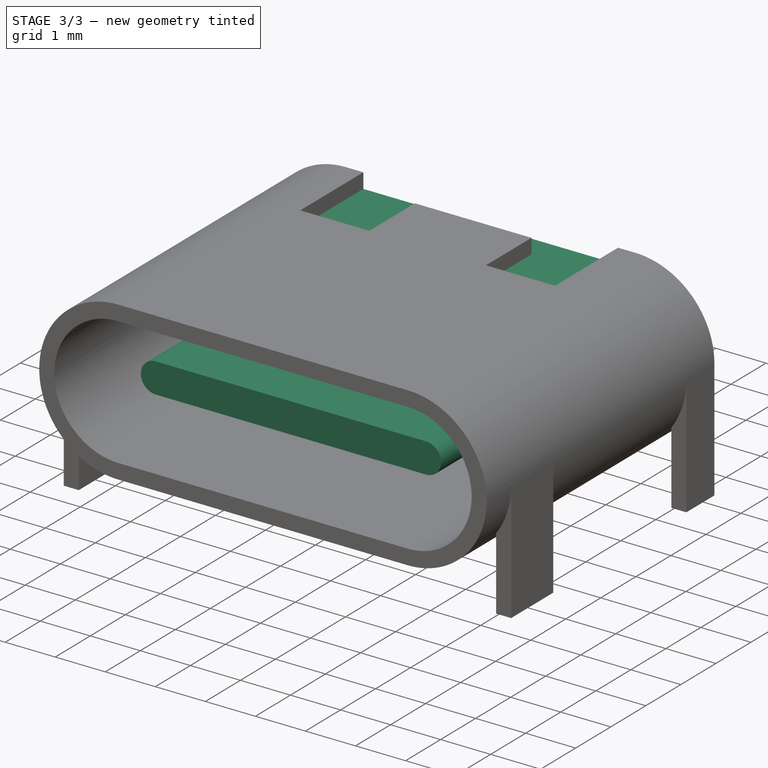
[diagram: stage 3 of 3 — iso view after this stage's code; geometry added in this stage tinted green]
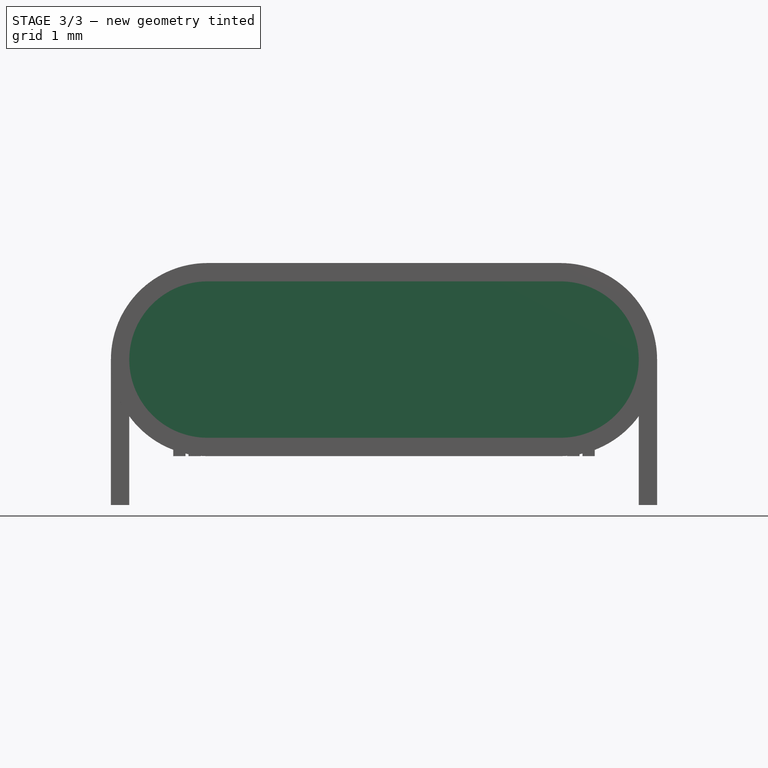
[diagram: stage 3 of 3 — front view after this stage's code; geometry added in this stage tinted green]
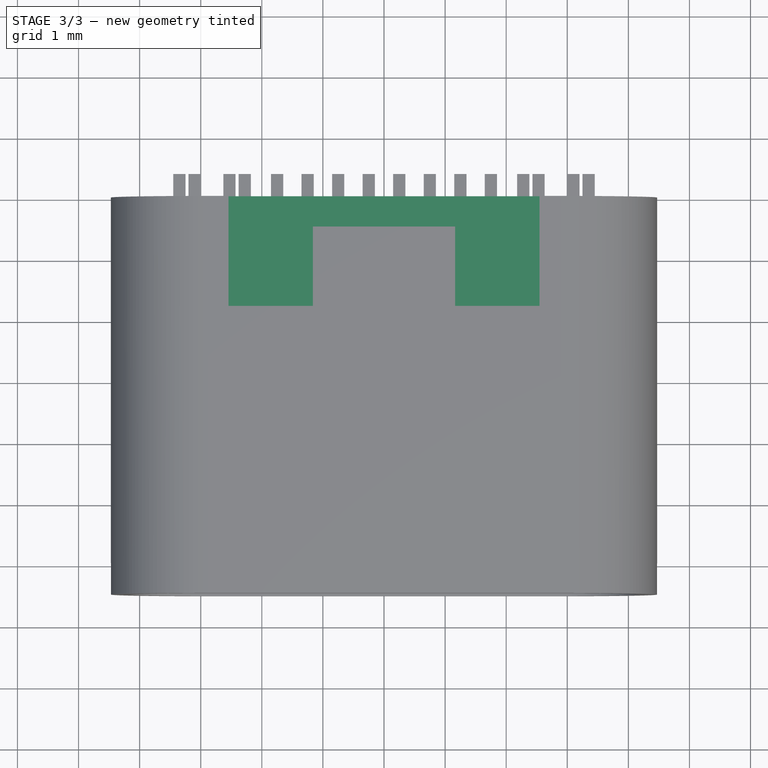
[diagram: stage 3 of 3 — top view after this stage's code; geometry added in this stage tinted green]
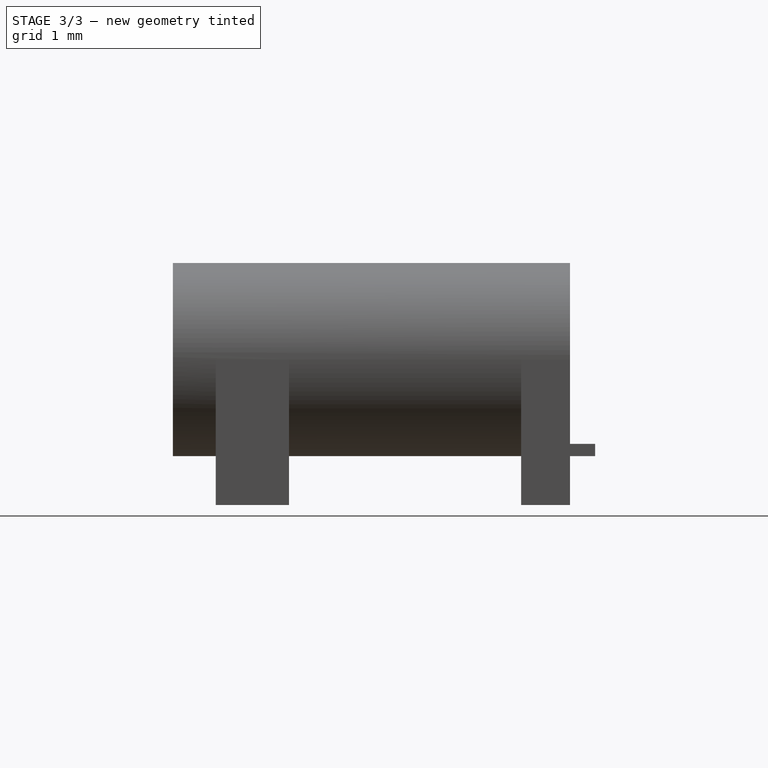
[diagram: stage 3 of 3 — right view after this stage's code; geometry added in this stage tinted green]
FEATURE [PartDesign::Plane] DatumPlane002  label="ShellBack"
  Length = 60
  MapMode = 5
  Placement = pos=(0,0,0) rot=(-1,0,0;1.5708rad)
  ResizeMode = 0
  Support = -> [Pad002]
  Width = 60
FEATURE [Sketcher::SketchObject] Sketch005
  FullyConstrained = true
  MapMode = 5
  Placement = pos=(0,0,0) rot=(-1,0,0;1.5708rad)
  Support = -> [DatumPlane002]
  sketch-geometry (4):
    g0: ArcOfCircle CenterX=-2.95 CenterY=-1.58 CenterZ=0 NormalX=0 NormalY=0 NormalZ=1 AngleXU=0 Radius=1.28 StartAngle=1.5708 EndAngle=4.71239
    g1: ArcOfCircle CenterX=2.95 CenterY=-1.58 CenterZ=0 NormalX=0 NormalY=0 NormalZ=1 AngleXU=0 Radius=1.28 StartAngle=4.71239 EndAngle=7.85398
    g2: LineSegment StartX=-2.95 StartY=-2.86 StartZ=0 EndX=2.95 EndY=-2.86 EndZ=0
    g3: LineSegment StartX=2.95 StartY=-0.3 StartZ=0 EndX=-2.95 EndY=-0.3 EndZ=0
  constraints (9):
    c: Tangent(g0,g2) = -1.5708
    c: Tangent(g2,g1) = -1.5708
    c: Tangent(g1,g3) = -1.5708
    c: Tangent(g3,g0) = -1.5708
    c: Equal(g0,g1)
    c: DistanceY(g1,g1) = 2.56
    c: DistanceY(g1,g-1) = 0.3
    c: DistanceX(g0,g1) = 5.9
    c: Symmetric(g0,g1,g-2)
FEATURE [PartDesign::Pad] Pad003  label="BackPlastic"
  BaseFeature = -> Pad002
  Direction = (0,1,-2.1e-15)
  Length = 2
  Length2 = 10
  Placement = pos=(0,0,0) rot=(1,0,0;1.5708rad)
  Profile = -> Sketch005
  ReferenceAxis = -> Sketch005 [N_Axis]
  Reversed = true
  Type = 0
FEATURE [Sketcher::SketchObject] Sketch006
  FullyConstrained = true
  MapMode = 5
  Placement = pos=(0,0,0) rot=(-1,0,0;1.5708rad)
  Support = -> [DatumPlane002]
  sketch-geometry (4):
    g0: ArcOfCircle CenterX=-2.7 CenterY=-1.58 CenterZ=0 NormalX=0 NormalY=0 NormalZ=1 AngleXU=0 Radius=0.3 StartAngle=1.5708 EndAngle=4.71239
    g1: ArcOfCircle CenterX=2.7 CenterY=-1.58 CenterZ=0 NormalX=0 NormalY=0 NormalZ=1 AngleXU=0 Radius=0.3 StartAngle=4.71239 EndAngle=7.85398
    g2: LineSegment StartX=-2.7 StartY=-1.88 StartZ=0 EndX=2.7 EndY=-1.88 EndZ=0
    g3: LineSegment StartX=2.7 StartY=-1.28 StartZ=0 EndX=-2.7 EndY=-1.28 EndZ=0
  constraints (9):
    c: Tangent(g0,g2) = -1.5708
    c: Tangent(g2,g1) = -1.5708
    c: Tangent(g1,g3) = -1.5708
    c: Tangent(g3,g0) = -1.5708
    c: Equal(g0,g1)
    c: Symmetric(g1,g0,g-2)
    c: DistanceY(g1,g1) = 0.6
    c: DistanceX(g0,g1) = 5.4
    c: DistanceY(g0,g-1) = 1.58
FEATURE [PartDesign::Pad] Pad004
  BaseFeature = -> Pad003
  Direction = (0,1,-2.1e-15)
  Length = 5.7
  Length2 = 10
  Placement = pos=(0,0,0) rot=(1,0,0;1.5708rad)
  Profile = -> Sketch006
  ReferenceAxis = -> Sketch006 [N_Axis]
  Reversed = true
  Type = 0
FEATURE [PartDesign::Body] Body
  Group = -> [Sketch,Pad,DatumPlane,Sketch001,Pocket,DatumPlane001,Sketch002,Pad001,Sketch003,MirroredSketch,Sketch004,Pad002,DatumPlane002,Sketch005,Pad003,Sketch006,Pad004]
  Origin = -> Origin
  Tip = -> Pad004
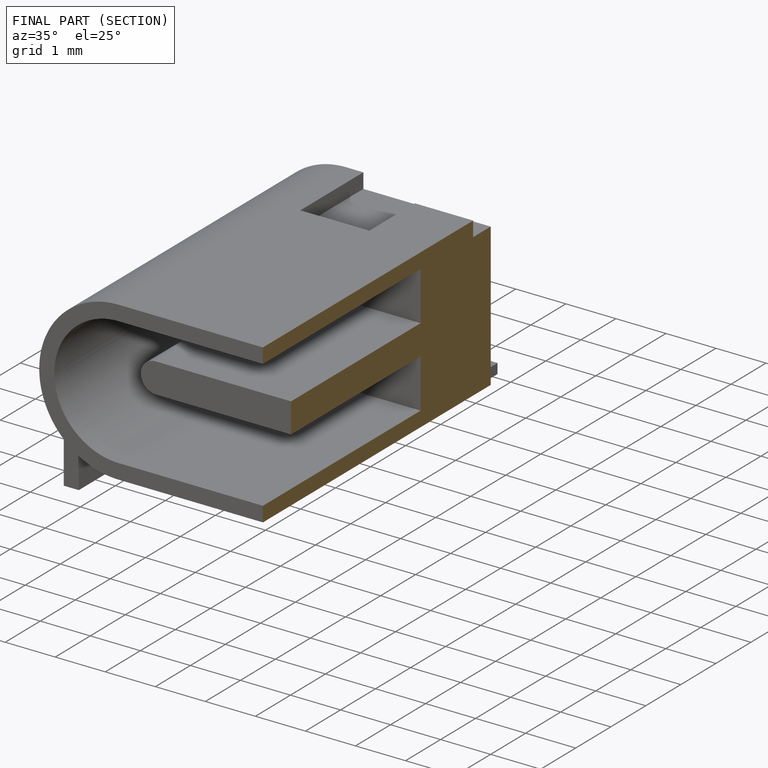
[diagram: finished part — half-section view (interior)]
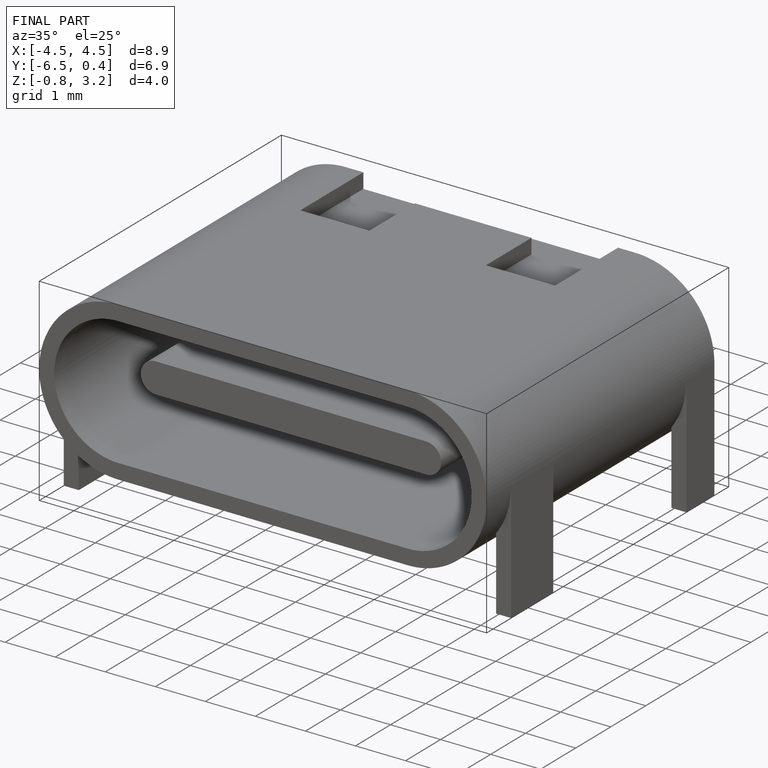
[diagram: finished part — iso view with bounding-box wireframe]
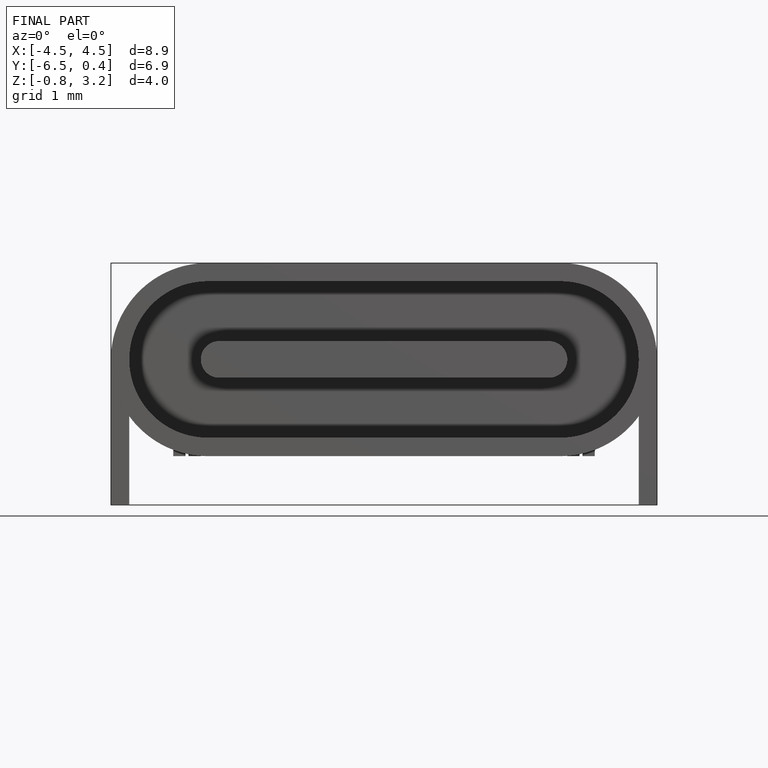
[diagram: finished part — front view with bounding-box wireframe]
